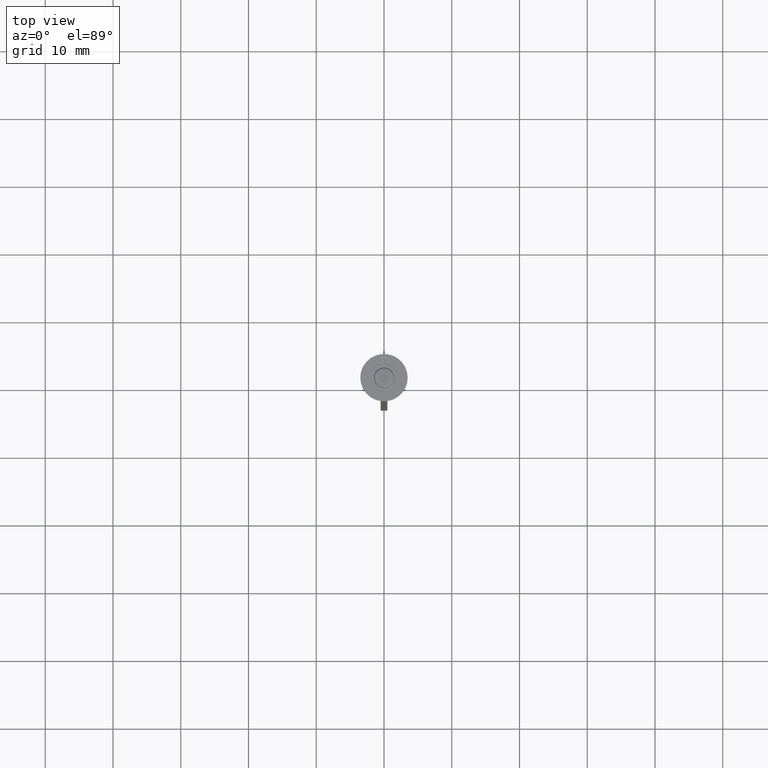
[diagram: clean part render]
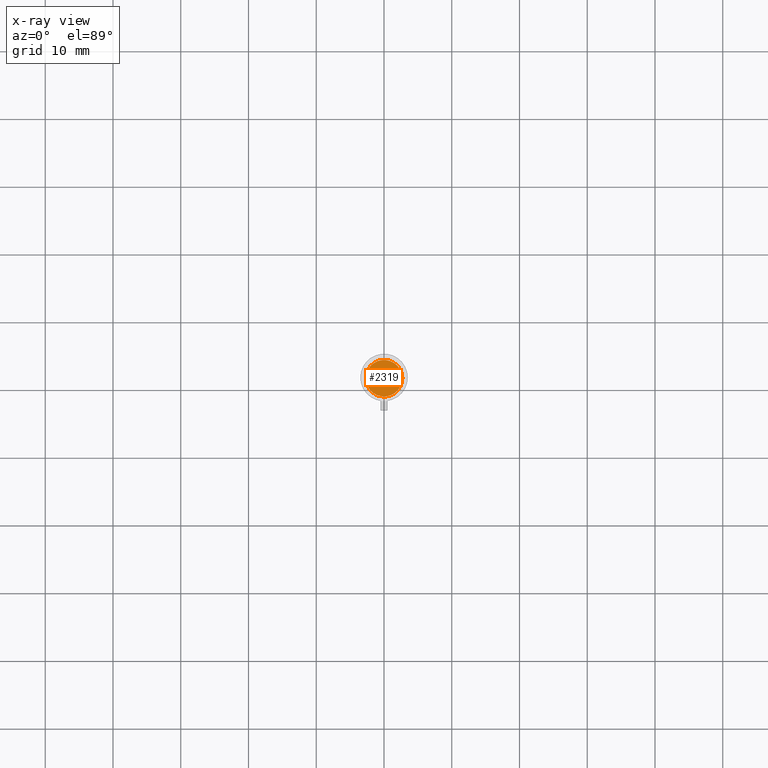
[diagram: x-ray — body ghosted, one internal face saturated and labeled with its STEP entity id]
A machine part, top view, then the same camera in x-ray: the body is ghosted and one INTERNAL B-rep face — a face not visible from any outside direction — is saturated and labeled: STEP entity #2319.
In plain terms, the highlighted planar face has unit normal (0, 0, -1).
Its self-contained STEP definition (entity closure, byte-faithful):
#72 = EDGE_CURVE ( 'NONE', #860, #1610, #541, .T. ) ;
#103 = DIRECTION ( 'NONE',  ( -0.000000000000000000, -0.000000000000000000, 1.000000000000000000 ) ) ;
#117 = PLANE ( 'NONE',  #1077 ) ;
#297 = FACE_OUTER_BOUND ( 'NONE', #2012, .T. ) ;
#398 = AXIS2_PLACEMENT_3D ( 'NONE', #791, #1510, #1488 ) ;
#541 = CIRCLE ( 'NONE', #725, 2.700000000000002398 ) ;
#725 = AXIS2_PLACEMENT_3D ( 'NONE', #778, #103, #1869 ) ;
#778 = CARTESIAN_POINT ( 'NONE',  ( 0.000000000000000000, 0.000000000000000000, -5.500000000000000000 ) ) ;
#791 = CARTESIAN_POINT ( 'NONE',  ( 0.000000000000000000, 0.000000000000000000, -5.500000000000000000 ) ) ;
#860 = VERTEX_POINT ( 'NONE', #1836 ) ;
#1077 = AXIS2_PLACEMENT_3D ( 'NONE', #1725, #1558, #2283 ) ;
#1084 = CARTESIAN_POINT ( 'NONE',  ( -2.700000000000002398, 0.000000000000000000, -5.500000000000000000 ) ) ;
#1488 = DIRECTION ( 'NONE',  ( -1.000000000000000000, 0.000000000000000000, 0.000000000000000000 ) ) ;
#1510 = DIRECTION ( 'NONE',  ( -0.000000000000000000, -0.000000000000000000, 1.000000000000000000 ) ) ;
#1558 = DIRECTION ( 'NONE',  ( 0.000000000000000000, 0.000000000000000000, -1.000000000000000000 ) ) ;
#1610 = VERTEX_POINT ( 'NONE', #1084 ) ;
#1719 = ORIENTED_EDGE ( 'NONE', *, *, #2253, .T. ) ;
#1725 = CARTESIAN_POINT ( 'NONE',  ( 0.000000000000000000, 0.000000000000000000, -5.500000000000000000 ) ) ;
#1789 = CIRCLE ( 'NONE', #398, 2.700000000000002398 ) ;
#1836 = CARTESIAN_POINT ( 'NONE',  ( 2.700000000000002398, 3.490243377569959512E-16, -5.500000000000000000 ) ) ;
#1869 = DIRECTION ( 'NONE',  ( -1.000000000000000000, 0.000000000000000000, 0.000000000000000000 ) ) ;
#2012 = EDGE_LOOP ( 'NONE', ( #1719, #2272 ) ) ;
#2253 = EDGE_CURVE ( 'NONE', #1610, #860, #1789, .T. ) ;
#2272 = ORIENTED_EDGE ( 'NONE', *, *, #72, .T. ) ;
#2283 = DIRECTION ( 'NONE',  ( -1.000000000000000000, 0.000000000000000000, -0.000000000000000000 ) ) ;
#2319 = ADVANCED_FACE ( 'NONE', ( #297 ), #117, .F. ) ;